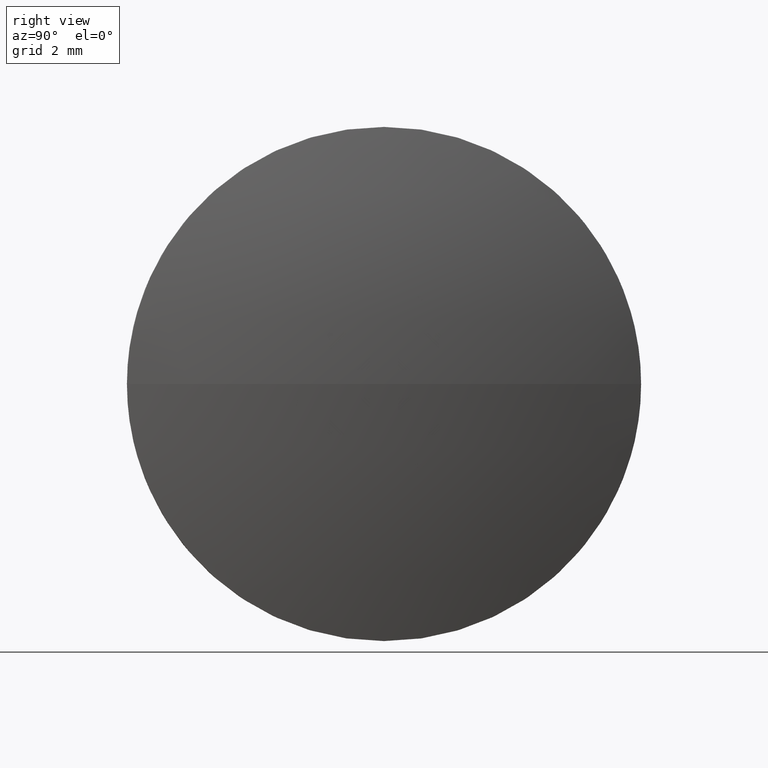
[diagram: clean part render]
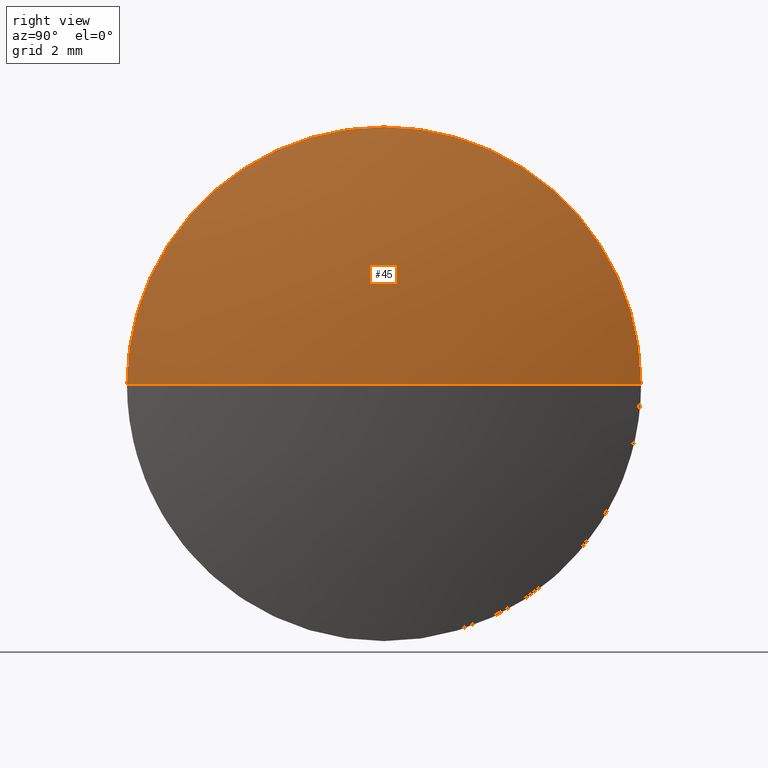
[diagram: same view with one face highlighted and labeled with its STEP entity id]
A machine part, right view. The second image highlights one B-rep face of the part: STEP entity #45.
In plain terms, the highlighted spherical surface has radius 31.0307 mm.
Its self-contained STEP definition (entity closure, byte-faithful):
#1 = CIRCLE ( 'NONE', #30, 31.03065217391317500 ) ;
#2 = ORIENTED_EDGE ( 'NONE', *, *, #118, .T. ) ;
#7 = VERTEX_POINT ( 'NONE', #97 ) ;
#12 = VERTEX_POINT ( 'NONE', #99 ) ;
#21 = DIRECTION ( 'NONE',  ( 0.0000000000000000000, 0.0000000000000000000, 1.000000000000000000 ) ) ;
#25 = CARTESIAN_POINT ( 'NONE',  ( 531.1173509089227300, 70.35047557403817100, 0.0000000000000000000 ) ) ;
#28 = AXIS2_PLACEMENT_3D ( 'NONE', #150, #162, #105 ) ;
#30 = AXIS2_PLACEMENT_3D ( 'NONE', #25, #173, #59 ) ;
#32 = CARTESIAN_POINT ( 'NONE',  ( 561.2280030828359300, 70.35047557403802900, 0.0000000000000000000 ) ) ;
#33 = DIRECTION ( 'NONE',  ( -1.000000000000000000, -0.0000000000000000000, -0.0000000000000000000 ) ) ;
#35 = CARTESIAN_POINT ( 'NONE',  ( 561.2280030828359300, 62.85047557403811400, 0.0000000000000000000 ) ) ;
#37 = CIRCLE ( 'NONE', #28, 31.03065217391321100 ) ;
#38 = DIRECTION ( 'NONE',  ( 0.0000000000000000000, 0.0000000000000000000, 1.000000000000000000 ) ) ;
#40 = AXIS2_PLACEMENT_3D ( 'NONE', #42, #86, #38 ) ;
#42 = CARTESIAN_POINT ( 'NONE',  ( 561.2280030828359300, 70.35047557403802900, 0.0000000000000000000 ) ) ;
#45 = ADVANCED_FACE ( 'NONE', ( #92 ), #176, .T. ) ;
#59 = DIRECTION ( 'NONE',  ( 0.0000000000000000000, -1.000000000000000000, -1.224646799147353200E-016 ) ) ;
#60 = ORIENTED_EDGE ( 'NONE', *, *, #68, .F. ) ;
#68 = EDGE_CURVE ( 'NONE', #96, #7, #143, .T. ) ;
#80 = VERTEX_POINT ( 'NONE', #35 ) ;
#86 = DIRECTION ( 'NONE',  ( -1.000000000000000000, -0.0000000000000000000, -0.0000000000000000000 ) ) ;
#92 = FACE_OUTER_BOUND ( 'NONE', #166, .T. ) ;
#96 = VERTEX_POINT ( 'NONE', #132 ) ;
#97 = CARTESIAN_POINT ( 'NONE',  ( 561.2280030828359300, 77.85047557403810000, 9.184850993605065100E-016 ) ) ;
#99 = CARTESIAN_POINT ( 'NONE',  ( 562.1480030828360000, 70.35047557403817100, 0.0000000000000000000 ) ) ;
#103 = ORIENTED_EDGE ( 'NONE', *, *, #170, .F. ) ;
#105 = DIRECTION ( 'NONE',  ( -1.000000000000000000, 0.0000000000000000000, 0.0000000000000000000 ) ) ;
#115 = CARTESIAN_POINT ( 'NONE',  ( 531.1173509089227300, 70.35047557403817100, 0.0000000000000000000 ) ) ;
#117 = DIRECTION ( 'NONE',  ( 0.0000000000000000000, -1.000000000000000000, 0.0000000000000000000 ) ) ;
#118 = EDGE_CURVE ( 'NONE', #12, #7, #1, .T. ) ;
#127 = EDGE_CURVE ( 'NONE', #12, #80, #37, .T. ) ;
#128 = CIRCLE ( 'NONE', #40, 7.499999999999992900 ) ;
#132 = CARTESIAN_POINT ( 'NONE',  ( 561.2280030828359300, 70.35047557403802900, 7.499999999999992900 ) ) ;
#134 = AXIS2_PLACEMENT_3D ( 'NONE', #32, #33, #155 ) ;
#143 = CIRCLE ( 'NONE', #134, 7.499999999999992900 ) ;
#150 = CARTESIAN_POINT ( 'NONE',  ( 531.1173509089227300, 70.35047557403817100, 0.0000000000000000000 ) ) ;
#155 = DIRECTION ( 'NONE',  ( 0.0000000000000000000, 0.0000000000000000000, 1.000000000000000000 ) ) ;
#159 = AXIS2_PLACEMENT_3D ( 'NONE', #115, #21, #117 ) ;
#161 = ORIENTED_EDGE ( 'NONE', *, *, #127, .F. ) ;
#162 = DIRECTION ( 'NONE',  ( 0.0000000000000000000, 0.0000000000000000000, -1.000000000000000000 ) ) ;
#166 = EDGE_LOOP ( 'NONE', ( #161, #2, #60, #103 ) ) ;
#170 = EDGE_CURVE ( 'NONE', #80, #96, #128, .T. ) ;
#173 = DIRECTION ( 'NONE',  ( 0.0000000000000000000, -1.224646799147353200E-016, 1.000000000000000000 ) ) ;
#176 = SPHERICAL_SURFACE ( 'NONE', #159, 31.03065217391317500 ) ;